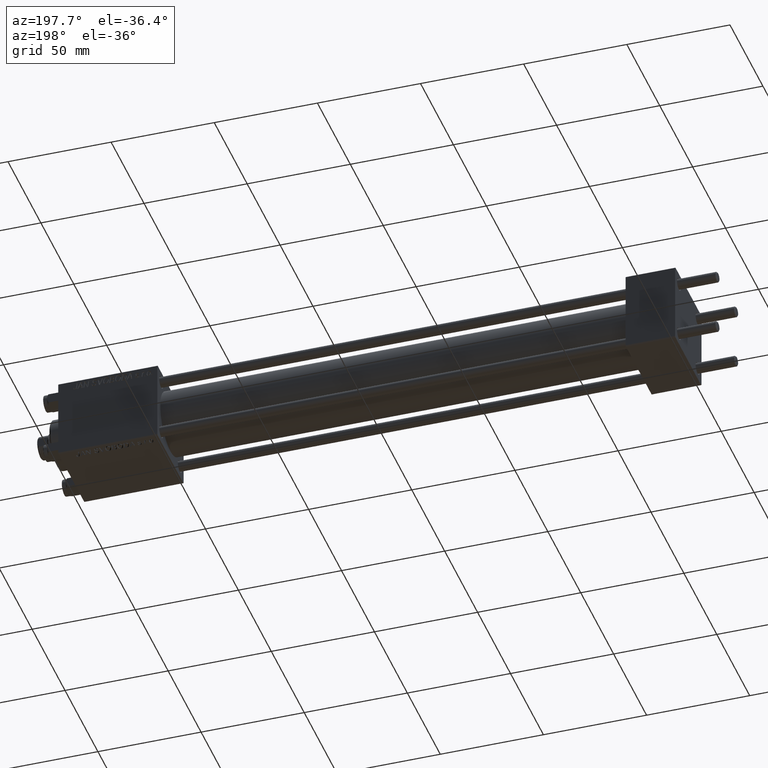
[diagram: clean part render]
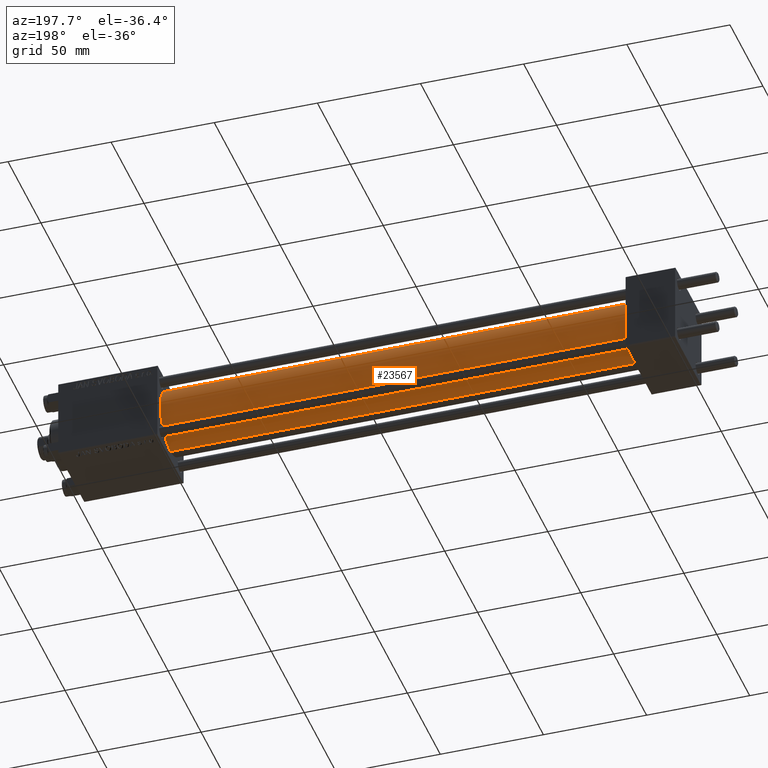
[diagram: same view with one face highlighted and labeled with its STEP entity id]
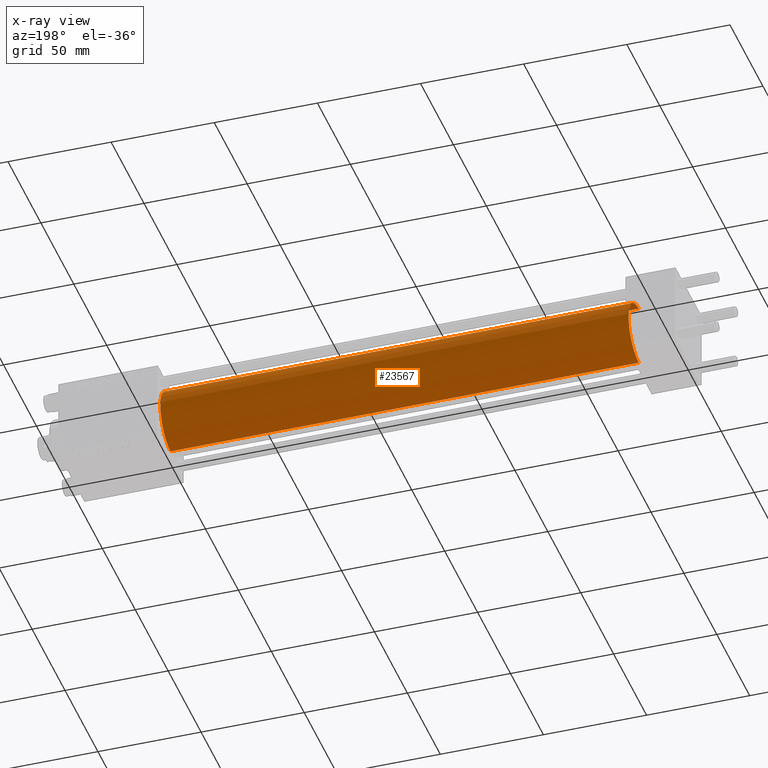
[diagram: x-ray of the same camera — body ghosted, the highlighted face saturated]
A machine part, auxiliary view. The second image highlights one B-rep face of the part: STEP entity #23567.
The next image is the same camera in x-ray: the body ghosted, the highlighted face saturated — about 0% of this face is hidden behind the body in this view.
In plain terms, the highlighted cylindrical surface (edge-blend (fillet) strip) has radius 15.5 mm, axis along (-1, -0, -0).
Its self-contained STEP definition (entity closure, byte-faithful):
#1579 = DIRECTION ( 'NONE',  ( 0.000000000000000000, 0.000000000000000000, -1.000000000000000000 ) ) ;
#4008 = EDGE_LOOP ( 'NONE', ( #34940, #11654, #31529, #38955 ) ) ;
#4301 = DIRECTION ( 'NONE',  ( 0.000000000000000000, 0.000000000000000000, 1.000000000000000000 ) ) ;
#4740 = CIRCLE ( 'NONE', #24061, 15.50000000000000000 ) ;
#6080 = CARTESIAN_POINT ( 'NONE',  ( 251.0000000000000000, 0.000000000000000000, 15.50000000000000000 ) ) ;
#9281 = LINE ( 'NONE', #17846, #35348 ) ;
#10119 = EDGE_CURVE ( 'NONE', #43448, #16927, #36466, .T. ) ;
#11654 = ORIENTED_EDGE ( 'NONE', *, *, #41761, .T. ) ;
#14093 = DIRECTION ( 'NONE',  ( -1.000000000000000000, -0.000000000000000000, -0.000000000000000000 ) ) ;
#14920 = AXIS2_PLACEMENT_3D ( 'NONE', #27215, #15639, #4301 ) ;
#15122 = VERTEX_POINT ( 'NONE', #18621 ) ;
#15639 = DIRECTION ( 'NONE',  ( -1.000000000000000000, -0.000000000000000000, -0.000000000000000000 ) ) ;
#16927 = VERTEX_POINT ( 'NONE', #6080 ) ;
#17846 = CARTESIAN_POINT ( 'NONE',  ( 251.0000000000000000, 1.898202538678397163E-15, -15.50000000000000000 ) ) ;
#18119 = LINE ( 'NONE', #47824, #44872 ) ;
#18621 = CARTESIAN_POINT ( 'NONE',  ( 23.99999999999999289, 0.000000000000000000, 15.50000000000000000 ) ) ;
#19672 = FACE_OUTER_BOUND ( 'NONE', #4008, .T. ) ;
#22597 = EDGE_CURVE ( 'NONE', #48908, #15122, #4740, .T. ) ;
#23567 = ADVANCED_FACE ( 'NONE', ( #19672 ), #38806, .T. ) ;
#24061 = AXIS2_PLACEMENT_3D ( 'NONE', #28456, #47593, #43827 ) ;
#24752 = DIRECTION ( 'NONE',  ( 1.000000000000000000, 0.000000000000000000, 0.000000000000000000 ) ) ;
#24884 = DIRECTION ( 'NONE',  ( -1.000000000000000000, -0.000000000000000000, -0.000000000000000000 ) ) ;
#27215 = CARTESIAN_POINT ( 'NONE',  ( 251.0000000000000000, 0.000000000000000000, 0.000000000000000000 ) ) ;
#28456 = CARTESIAN_POINT ( 'NONE',  ( 23.99999999999999289, 0.000000000000000000, 0.000000000000000000 ) ) ;
#31072 = CARTESIAN_POINT ( 'NONE',  ( 251.0000000000000000, 1.898202538678397163E-15, -15.50000000000000000 ) ) ;
#31529 = ORIENTED_EDGE ( 'NONE', *, *, #22597, .T. ) ;
#32911 = CARTESIAN_POINT ( 'NONE',  ( 23.99999999999999289, 1.898202538678397163E-15, -15.50000000000000000 ) ) ;
#33128 = EDGE_CURVE ( 'NONE', #16927, #15122, #18119, .T. ) ;
#34940 = ORIENTED_EDGE ( 'NONE', *, *, #10119, .F. ) ;
#35348 = VECTOR ( 'NONE', #24884, 1000.000000000000000 ) ;
#36466 = CIRCLE ( 'NONE', #38858, 15.50000000000000000 ) ;
#38806 = CYLINDRICAL_SURFACE ( 'NONE', #14920, 15.50000000000000000 ) ;
#38858 = AXIS2_PLACEMENT_3D ( 'NONE', #39869, #24752, #1579 ) ;
#38955 = ORIENTED_EDGE ( 'NONE', *, *, #33128, .F. ) ;
#39869 = CARTESIAN_POINT ( 'NONE',  ( 251.0000000000000000, 0.000000000000000000, 0.000000000000000000 ) ) ;
#41761 = EDGE_CURVE ( 'NONE', #43448, #48908, #9281, .T. ) ;
#43448 = VERTEX_POINT ( 'NONE', #31072 ) ;
#43827 = DIRECTION ( 'NONE',  ( 0.000000000000000000, 0.000000000000000000, 1.000000000000000000 ) ) ;
#44872 = VECTOR ( 'NONE', #14093, 1000.000000000000000 ) ;
#47593 = DIRECTION ( 'NONE',  ( 1.000000000000000000, 0.000000000000000000, 0.000000000000000000 ) ) ;
#47824 = CARTESIAN_POINT ( 'NONE',  ( 251.0000000000000000, 0.000000000000000000, 15.50000000000000000 ) ) ;
#48908 = VERTEX_POINT ( 'NONE', #32911 ) ;